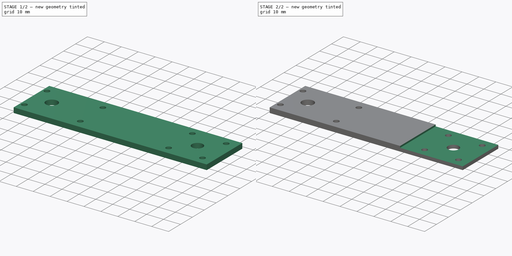
[diagram: build sequence overview — one tinted view per stage of 2, left to right]
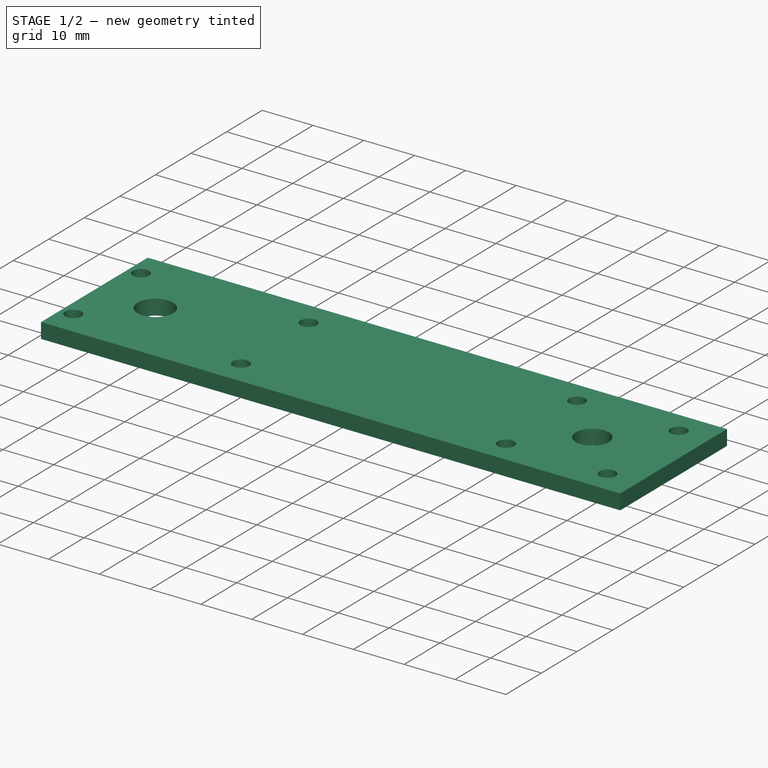
[diagram: stage 1 of 2 — iso view after this stage's code; geometry added in this stage tinted green]
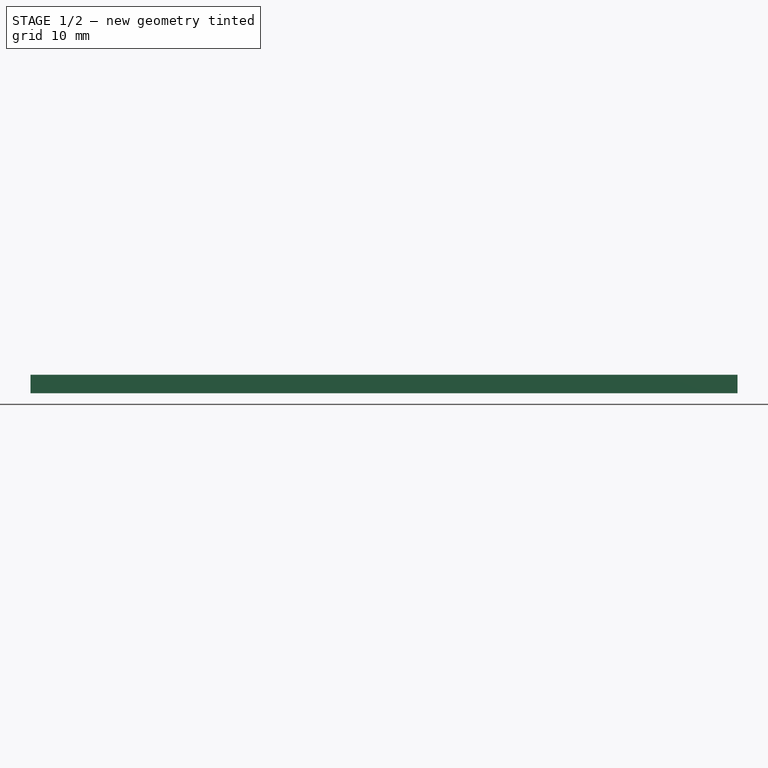
[diagram: stage 1 of 2 — front view after this stage's code; geometry added in this stage tinted green]
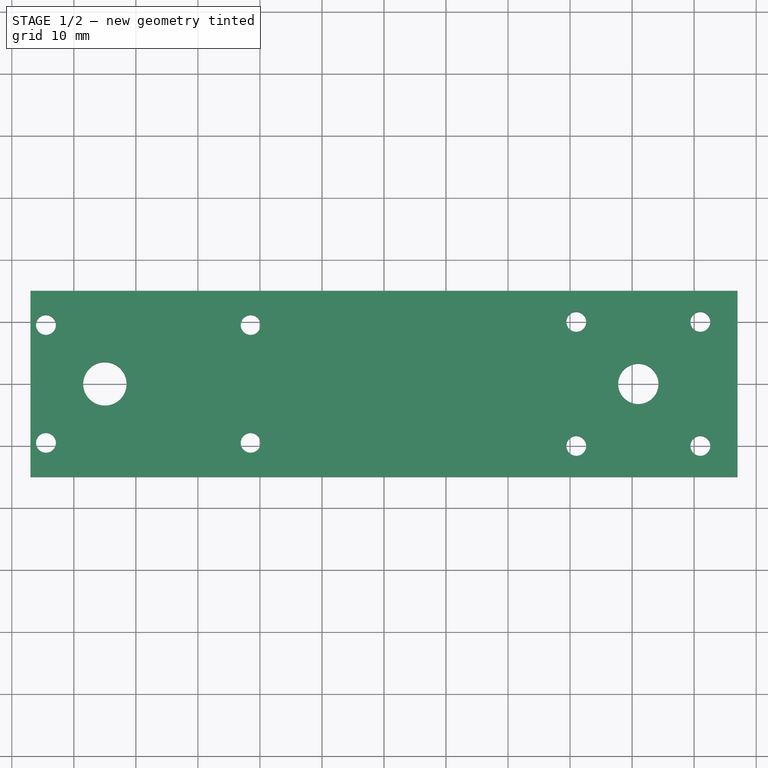
[diagram: stage 1 of 2 — top view after this stage's code; geometry added in this stage tinted green]
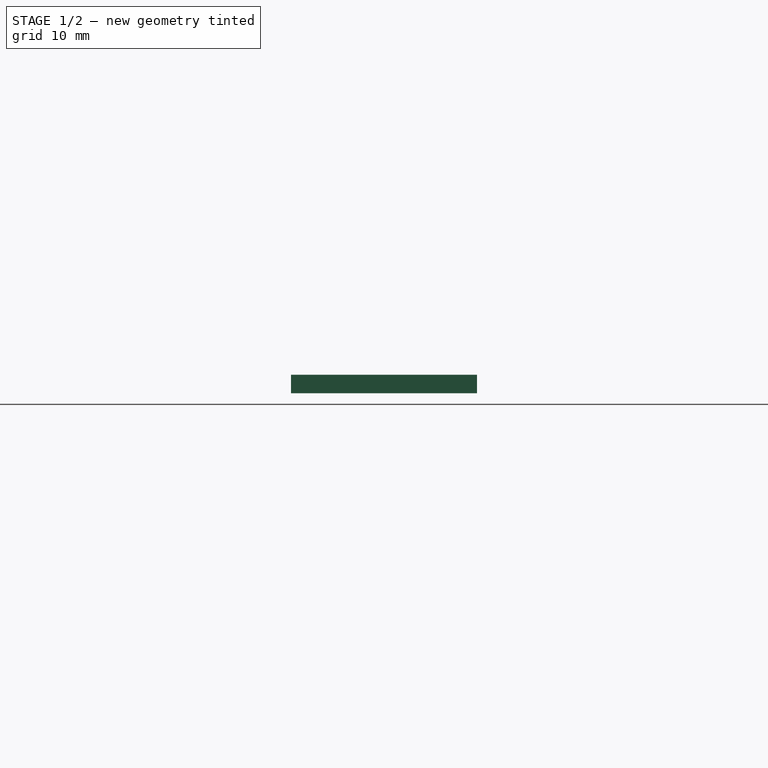
[diagram: stage 1 of 2 — right view after this stage's code; geometry added in this stage tinted green]
FCSTD DOCUMENT  (FreeCAD 0.18.4R)
Label: wheel_bracket
License: All rights reserved
LicenseURL: http://en.wikipedia.org/wiki/All_rights_reserved
objects: TechDraw::DrawViewPart×4, Sketcher::SketchObject×2, PartDesign::Pad×1, TechDraw::DrawSVGTemplate×1, PartDesign::Pocket×1, PartDesign::Body×1, TechDraw::DrawPage×1
note: 7 computed .brp shape members not serialized (recipe doc carries the construction recipe); baked Part::Feature solids carry a one-line shape summary decoded from their .brp

FEATURE [Sketcher::SketchObject] Sketch
  MapMode = 5
  Support = -> [XY_Plane]
  sketch-geometry (22):
    g0: LineSegment StartX=-57 StartY=15 StartZ=0 EndX=57 EndY=15 EndZ=0
    g1: LineSegment StartX=57 StartY=15 StartZ=0 EndX=57 EndY=-15 EndZ=0
    g2: LineSegment StartX=57 StartY=-15 StartZ=0 EndX=-57 EndY=-15 EndZ=0
    g3: LineSegment StartX=-57 StartY=-15 StartZ=0 EndX=-57 EndY=15 EndZ=0
    g4: Circle CenterX=41 CenterY=0 CenterZ=0 NormalX=0 NormalY=0 NormalZ=1 AngleXU=0 Radius=3.25
    g5: Circle CenterX=51 CenterY=10 CenterZ=0 NormalX=0 NormalY=0 NormalZ=1 AngleXU=0 Radius=1.6
    g6: Circle CenterX=31 CenterY=10 CenterZ=0 NormalX=0 NormalY=0 NormalZ=1 AngleXU=0 Radius=1.6
    g7: Circle CenterX=31 CenterY=-10 CenterZ=0 NormalX=0 NormalY=0 NormalZ=1 AngleXU=0 Radius=1.6
    g8: Circle CenterX=51 CenterY=-10 CenterZ=0 NormalX=0 NormalY=0 NormalZ=1 AngleXU=0 Radius=1.6
    g9: LineSegment [constr] StartX=31 StartY=10 StartZ=0 EndX=51 EndY=10 EndZ=0
    g10: LineSegment [constr] StartX=51 StartY=10 StartZ=0 EndX=51 EndY=-10 EndZ=0
    g11: LineSegment [constr] StartX=51 StartY=-10 StartZ=0 EndX=31 EndY=-10 EndZ=0
    g12: LineSegment [constr] StartX=31 StartY=-10 StartZ=0 EndX=31 EndY=10 EndZ=0
    g13: Circle CenterX=-45 CenterY=0 CenterZ=0 NormalX=0 NormalY=0 NormalZ=1 AngleXU=0 Radius=3.5
    g14: Circle CenterX=-54.5 CenterY=9.5 CenterZ=0 NormalX=0 NormalY=0 NormalZ=1 AngleXU=0 Radius=1.6
    g15: Circle CenterX=-21.5 CenterY=9.5 CenterZ=0 NormalX=0 NormalY=0 NormalZ=1 AngleXU=0 Radius=1.6
    g16: Circle CenterX=-21.5 CenterY=-9.5 CenterZ=0 NormalX=0 NormalY=0 NormalZ=1 AngleXU=0 Radius=1.6
    g17: Circle CenterX=-54.5 CenterY=-9.5 CenterZ=0 NormalX=0 NormalY=0 NormalZ=1 AngleXU=0 Radius=1.6
    g18: LineSegment [constr] StartX=-54.5 StartY=9.5 StartZ=0 EndX=-21.5 EndY=9.5 EndZ=0
    g19: LineSegment [constr] StartX=-21.5 StartY=9.5 StartZ=0 EndX=-21.5 EndY=-9.5 EndZ=0
    g20: LineSegment [constr] StartX=-21.5 StartY=-9.5 StartZ=0 EndX=-54.5 EndY=-9.5 EndZ=0
    g21: LineSegment [constr] StartX=-54.5 StartY=-9.5 StartZ=0 EndX=-54.5 EndY=9.5 EndZ=0
  constraints (55):
    c: Coincident(g0,g1)
    c: Coincident(g1,g2)
    c: Coincident(g2,g3)
    c: Coincident(g3,g0)
    c: Horizontal(g0)
    c: Horizontal(g2)
    c: Vertical(g1)
    c: Vertical(g3)
    c: DistanceY(g1,g1) = 30
    c: DistanceX(g0,g0) = 114
    c: Diameter(g8) = 3.2
    c: Equal(g8,g7)
    c: Equal(g8,g6)
    c: Equal(g8,g5)
    c: Coincident(g9,g10)
    c: Coincident(g10,g11)
    c: Coincident(g11,g12)
    c: Coincident(g12,g9)
    c: Horizontal(g9)
    c: Horizontal(g11)
    c: Vertical(g10)
    c: Vertical(g12)
    c: Symmetric(g11,g9,g4)
    c: DistanceX(g9,g9) = 20
    c: DistanceY(g12,g12) = 20
    c: Coincident(g6,g9)
    c: Coincident(g5,g9)
    c: Coincident(g7,g11)
    c: Coincident(g8,g10)
    c: PointOnObject(g4,g-1)
    c: DistanceX(g4,g0) = 16
    c: Symmetric(g1,g0,g-1)
    c: Diameter(g4) = 6.5
    c: PointOnObject(g13,g-1)
    c: Diameter(g13) = 7
    c: DistanceX(g0,g13) = 12
    c: Coincident(g18,g19)
    c: Coincident(g19,g20)
    c: Coincident(g20,g21)
    c: Coincident(g21,g18)
    c: Horizontal(g18)
    c: Horizontal(g20)
    c: Vertical(g21)
    c: Coincident(g19,g16)
    c: Coincident(g18,g15)
    c: Coincident(g14,g18)
    c: Coincident(g17,g20)
    c: Diameter(g14) = 3.2
    c: Equal(g14,g15)
    c: Equal(g14,g16)
    c: Equal(g14,g17)
    c: Symmetric(g16,g15,g-1)
    c: DistanceY(g19,g19) = 19
    c: DistanceX(g18,g18) = 33
    c: DistanceX(g17,g13) = 9.5
FEATURE [PartDesign::Pad] Pad
  Length = 3
  Length2 = 100
  Profile = -> Sketch
  Type = 0
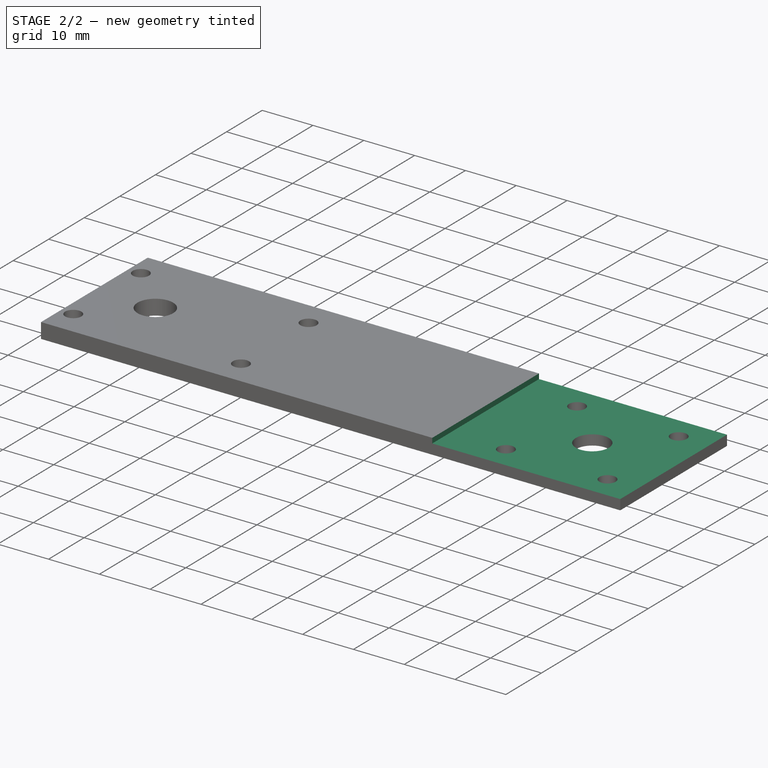
[diagram: stage 2 of 2 — iso view after this stage's code; geometry added in this stage tinted green]
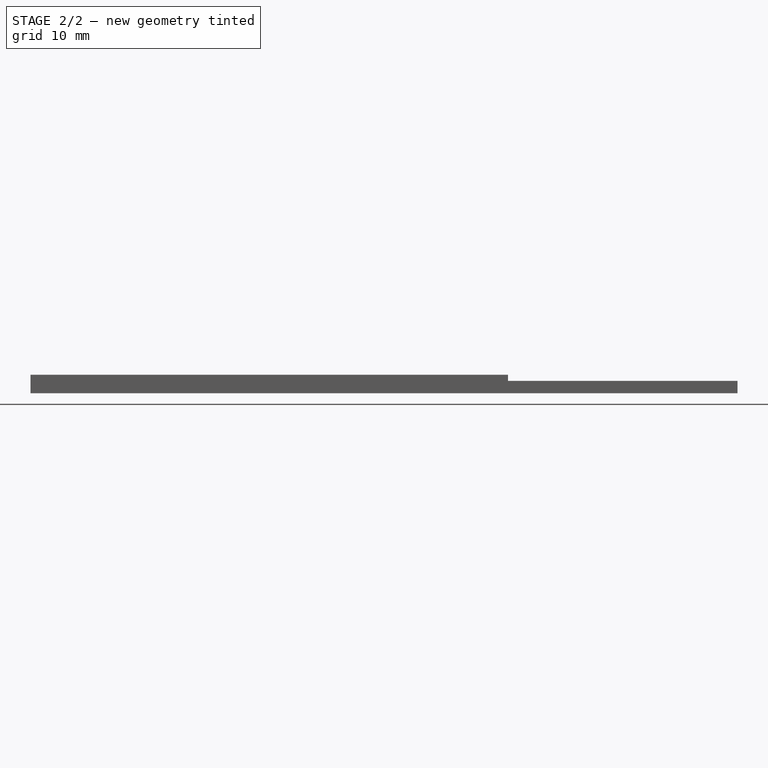
[diagram: stage 2 of 2 — front view after this stage's code; geometry added in this stage tinted green]
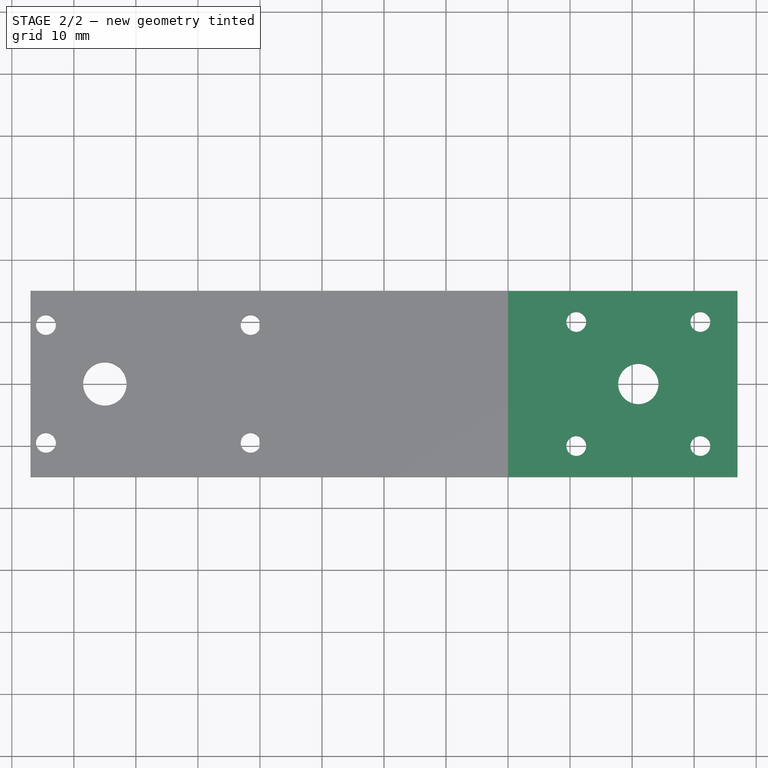
[diagram: stage 2 of 2 — top view after this stage's code; geometry added in this stage tinted green]
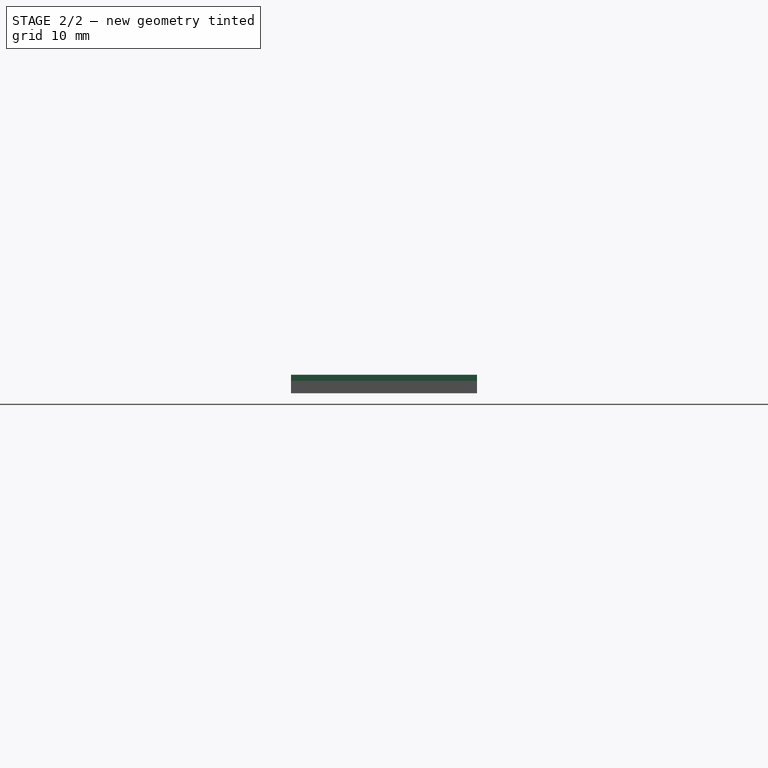
[diagram: stage 2 of 2 — right view after this stage's code; geometry added in this stage tinted green]
FEATURE [TechDraw::DrawSVGTemplate] Template
  EditableTexts = Designed_by_Name=Designed by Name; Drawing_number=Drawing number; FC-Date=Date; FC-SC=Scale; FC-SH=Sheet; FC-Title=Title; Subtitle=Subtitle; Weight=Weight
  Height = 210
  Orientation = 1
  Width = 297
FEATURE [Sketcher::SketchObject] Sketch001
  MapMode = 5
  Placement = pos=(0,0,3) rot=(0,0,1;0rad)
  Support = -> [Pad]
  sketch-geometry (4):
    g0: LineSegment StartX=20 StartY=24.1427 StartZ=0 EndX=64.7031 EndY=24.1427 EndZ=0
    g1: LineSegment StartX=64.7031 StartY=24.1427 StartZ=0 EndX=64.7031 EndY=-23.4605 EndZ=0
    g2: LineSegment StartX=64.7031 StartY=-23.4605 StartZ=0 EndX=20 EndY=-23.4605 EndZ=0
    g3: LineSegment StartX=20 StartY=-23.4605 StartZ=0 EndX=20 EndY=24.1427 EndZ=0
  constraints (9):
    c: Coincident(g0,g1)
    c: Coincident(g1,g2)
    c: Coincident(g2,g3)
    c: Coincident(g3,g0)
    c: Horizontal(g0)
    c: Horizontal(g2)
    c: Vertical(g1)
    c: Vertical(g3)
    c: DistanceX(g-1,g0) = 20
FEATURE [PartDesign::Pocket] Pocket
  BaseFeature = -> Pad
  Length = 1
  Length2 = 100
  Profile = -> Sketch001
  Type = 0
FEATURE [PartDesign::Body] Body
  Group = -> [Sketch,Pad,Sketch001,Pocket]
  Origin = -> Origin
  Tip = -> Pocket
FEATURE [TechDraw::DrawViewPart] View
  CoarseView = false
  Direction = (0,0,1)
  Focus = 100
  HardHidden = false
  IsoCount = 0
  IsoHidden = false
  IsoVisible = false
  LockPosition = false
  Perspective = false
  Rotation = 0
  ScaleType = 0
  SeamHidden = false
  SeamVisible = false
  SmoothHidden = false
  SmoothVisible = false
  Source = -> [Body]
  X = 82.4147
  Y = 171.483
FEATURE [TechDraw::DrawViewPart] View001
  CoarseView = false
  Direction = (0,0,1)
  Focus = 100
  HardHidden = false
  IsoCount = 0
  IsoHidden = false
  IsoVisible = false
  LockPosition = false
  Perspective = false
  Rotation = 0
  ScaleType = 0
  SeamHidden = false
  SeamVisible = false
  SmoothHidden = false
  SmoothVisible = false
  Source = -> [Body]
  X = 210.206
  Y = 171.085
FEATURE [TechDraw::DrawViewPart] View002
  CoarseView = false
  Direction = (0,0,1)
  Focus = 100
  HardHidden = false
  IsoCount = 0
  IsoHidden = false
  IsoVisible = false
  LockPosition = false
  Perspective = false
  Rotation = 0
  ScaleType = 0
  SeamHidden = false
  SeamVisible = false
  SmoothHidden = false
  SmoothVisible = false
  Source = -> [Body]
  X = 82.0166
  Y = 127.692
FEATURE [TechDraw::DrawViewPart] View003
  CoarseView = false
  Direction = (0,0,1)
  Focus = 100
  HardHidden = false
  IsoCount = 0
  IsoHidden = false
  IsoVisible = false
  LockPosition = false
  Perspective = false
  Rotation = 0
  ScaleType = 0
  SeamHidden = false
  SeamVisible = false
  SmoothHidden = false
  SmoothVisible = false
  Source = -> [Body]
  X = 208.614
  Y = 126.896
FEATURE [TechDraw::DrawPage] Page
  KeepUpdated = true
  ProjectionType = 0
  Template = -> Template
  Views = -> [View,View001,View002,View003]
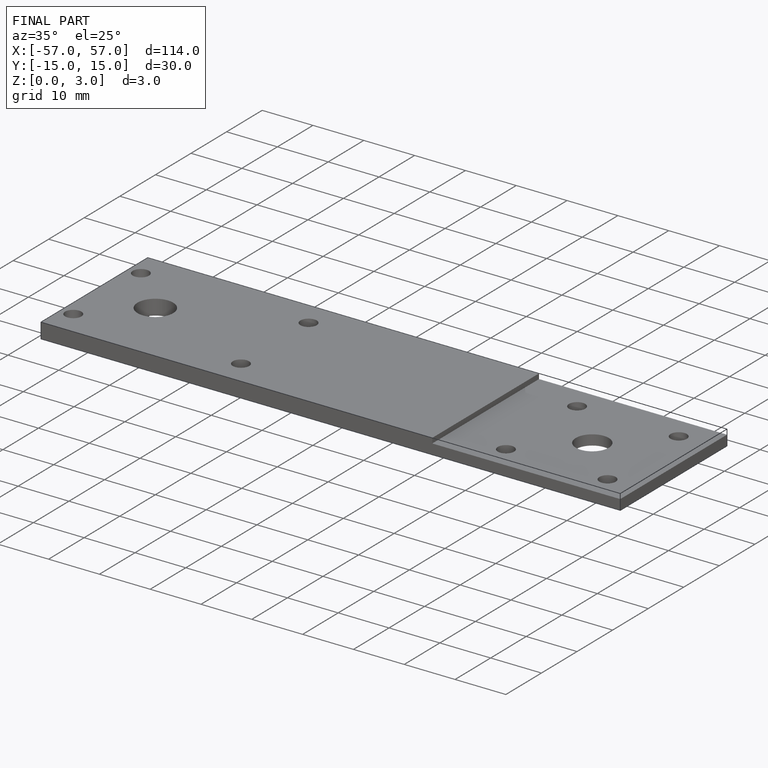
[diagram: finished part — iso view with bounding-box wireframe]
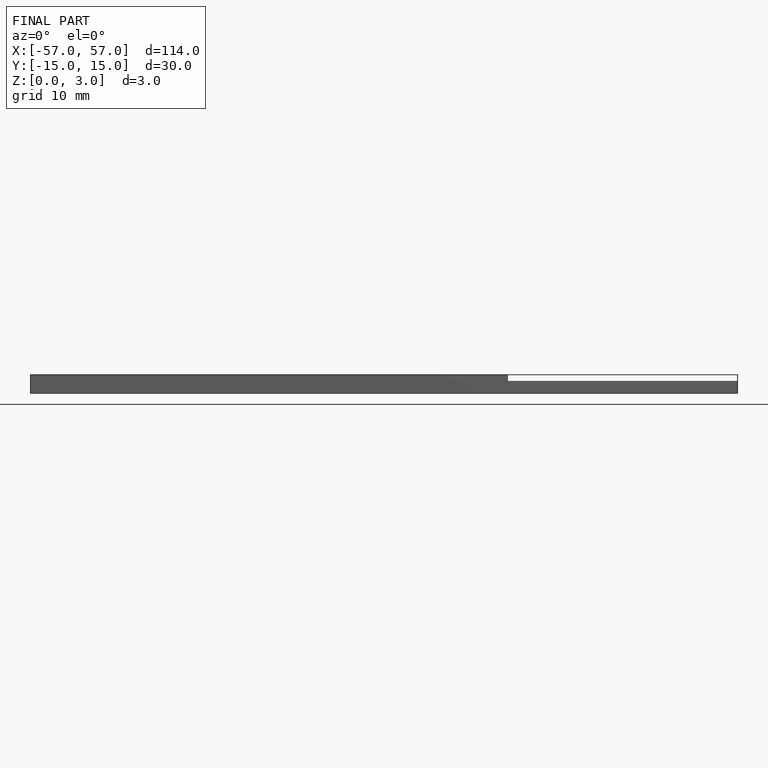
[diagram: finished part — front view with bounding-box wireframe]
